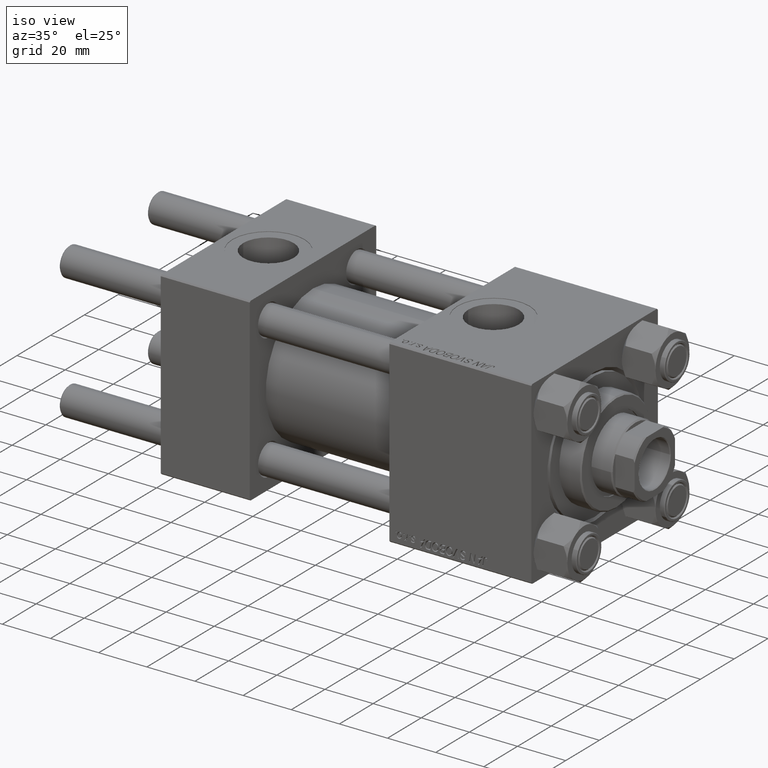
[diagram: clean part render]
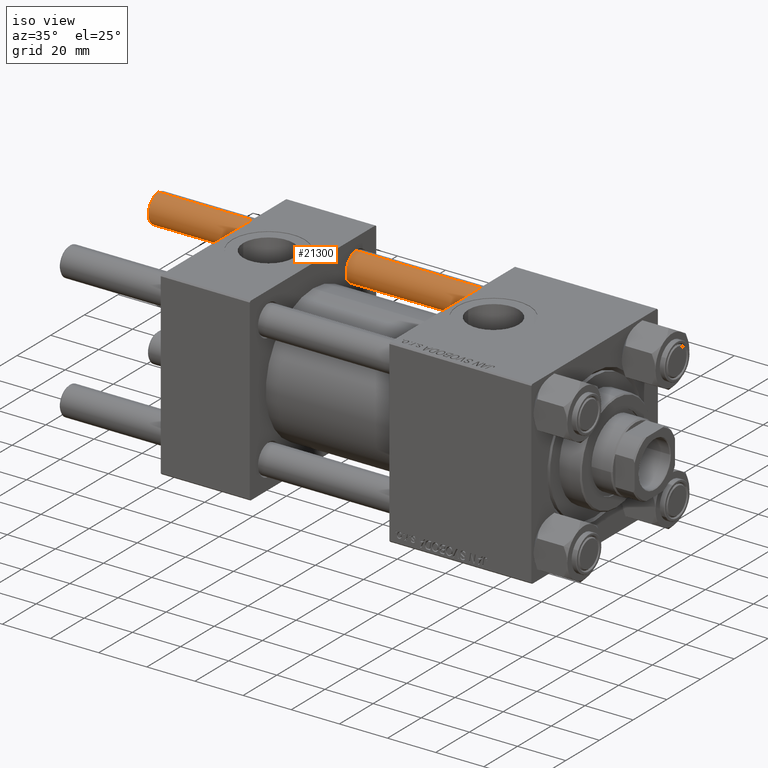
[diagram: same view with one face highlighted and labeled with its STEP entity id]
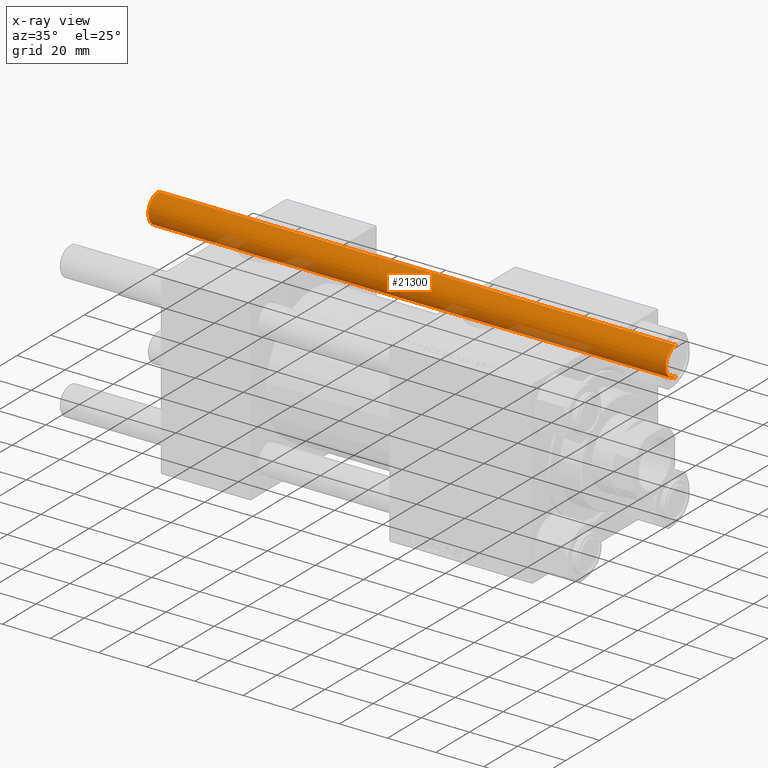
[diagram: x-ray of the same camera — body ghosted, the highlighted face saturated]
A machine part, iso view. The second image highlights one B-rep face of the part: STEP entity #21300.
The next image is the same camera in x-ray: the body ghosted, the highlighted face saturated — about 8% of this face is hidden behind the body in this view.
In plain terms, the highlighted cylindrical surface (edge-blend (fillet) strip) has radius 6 mm, axis along (-1, -0, -0).
Its self-contained STEP definition (entity closure, byte-faithful):
#727 = CIRCLE ( 'NONE', #40098, 6.000000000000000888 ) ;
#933 = VECTOR ( 'NONE', #3863, 1000.000000000000000 ) ;
#1947 = AXIS2_PLACEMENT_3D ( 'NONE', #5690, #32817, #28087 ) ;
#2633 = ORIENTED_EDGE ( 'NONE', *, *, #45922, .T. ) ;
#3677 = EDGE_LOOP ( 'NONE', ( #14198, #2633, #10155, #25285 ) ) ;
#3863 = DIRECTION ( 'NONE',  ( -0.000000000000000000, -0.000000000000000000, -1.000000000000000000 ) ) ;
#4501 = VERTEX_POINT ( 'NONE', #17274 ) ;
#4906 = DIRECTION ( 'NONE',  ( 1.000000000000000000, 0.000000000000000000, 0.000000000000000000 ) ) ;
#5106 = VERTEX_POINT ( 'NONE', #16558 ) ;
#5690 = CARTESIAN_POINT ( 'NONE',  ( 0.000000000000000000, 0.000000000000000000, 216.0000000000000000 ) ) ;
#7927 = DIRECTION ( 'NONE',  ( -0.000000000000000000, -0.000000000000000000, 1.000000000000000000 ) ) ;
#10155 = ORIENTED_EDGE ( 'NONE', *, *, #24528, .T. ) ;
#10866 = CARTESIAN_POINT ( 'NONE',  ( -6.000000000000000888, 0.000000000000000000, 0.5000000000000004441 ) ) ;
#11645 = VECTOR ( 'NONE', #34234, 1000.000000000000000 ) ;
#12533 = EDGE_CURVE ( 'NONE', #28144, #5106, #42839, .T. ) ;
#12994 = FACE_OUTER_BOUND ( 'NONE', #3677, .T. ) ;
#14198 = ORIENTED_EDGE ( 'NONE', *, *, #12533, .F. ) ;
#14208 = AXIS2_PLACEMENT_3D ( 'NONE', #45901, #7927, #4906 ) ;
#15136 = CARTESIAN_POINT ( 'NONE',  ( 0.000000000000000000, 0.000000000000000000, 215.5000000000000284 ) ) ;
#15626 = CARTESIAN_POINT ( 'NONE',  ( 6.000000000000000888, 7.347880794884120722E-16, 215.5000000000000284 ) ) ;
#15875 = VERTEX_POINT ( 'NONE', #10866 ) ;
#16558 = CARTESIAN_POINT ( 'NONE',  ( 6.000000000000000888, 7.347880794884120722E-16, 0.5000000000000004441 ) ) ;
#17274 = CARTESIAN_POINT ( 'NONE',  ( -6.000000000000000888, 0.000000000000000000, 215.5000000000000284 ) ) ;
#21300 = ADVANCED_FACE ( 'NONE', ( #12994 ), #47203, .T. ) ;
#24528 = EDGE_CURVE ( 'NONE', #4501, #15875, #41537, .T. ) ;
#25285 = ORIENTED_EDGE ( 'NONE', *, *, #29592, .T. ) ;
#28087 = DIRECTION ( 'NONE',  ( -1.000000000000000000, 0.000000000000000000, 0.000000000000000000 ) ) ;
#28144 = VERTEX_POINT ( 'NONE', #15626 ) ;
#29592 = EDGE_CURVE ( 'NONE', #15875, #5106, #30164, .T. ) ;
#30164 = CIRCLE ( 'NONE', #14208, 6.000000000000000888 ) ;
#30465 = DIRECTION ( 'NONE',  ( 0.000000000000000000, 0.000000000000000000, -1.000000000000000000 ) ) ;
#32817 = DIRECTION ( 'NONE',  ( -0.000000000000000000, -0.000000000000000000, -1.000000000000000000 ) ) ;
#34234 = DIRECTION ( 'NONE',  ( -0.000000000000000000, -0.000000000000000000, -1.000000000000000000 ) ) ;
#34737 = CARTESIAN_POINT ( 'NONE',  ( -6.000000000000000888, 0.000000000000000000, 216.0000000000000000 ) ) ;
#38013 = DIRECTION ( 'NONE',  ( 1.000000000000000000, 0.000000000000000000, 0.000000000000000000 ) ) ;
#40098 = AXIS2_PLACEMENT_3D ( 'NONE', #15136, #30465, #38013 ) ;
#41537 = LINE ( 'NONE', #34737, #11645 ) ;
#42839 = LINE ( 'NONE', #46614, #933 ) ;
#45901 = CARTESIAN_POINT ( 'NONE',  ( 0.000000000000000000, 0.000000000000000000, 0.5000000000000004441 ) ) ;
#45922 = EDGE_CURVE ( 'NONE', #28144, #4501, #727, .T. ) ;
#46614 = CARTESIAN_POINT ( 'NONE',  ( 6.000000000000000888, 7.347880794884120722E-16, 216.0000000000000000 ) ) ;
#47203 = CYLINDRICAL_SURFACE ( 'NONE', #1947, 6.000000000000000888 ) ;